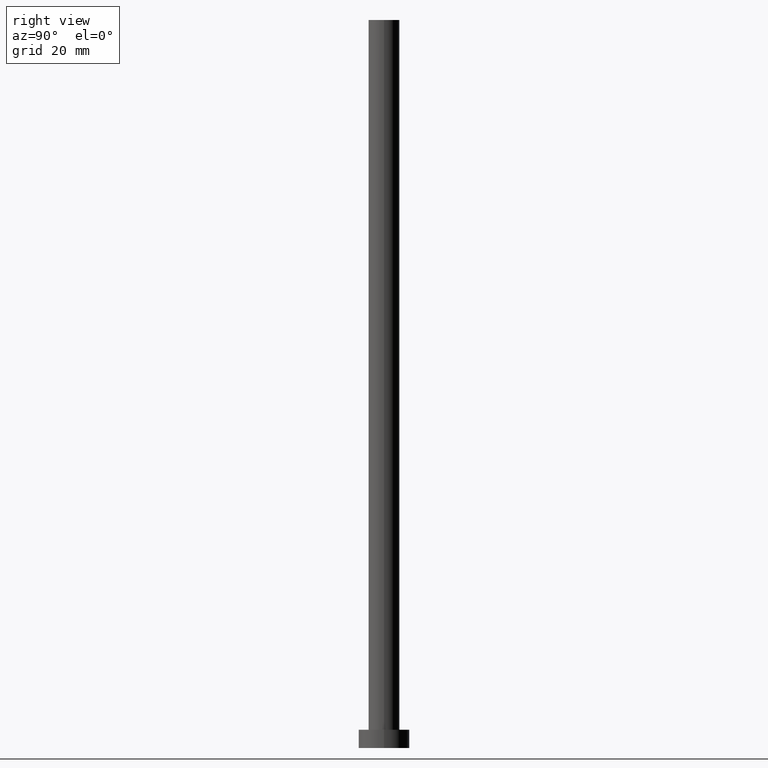
[diagram: clean part render]
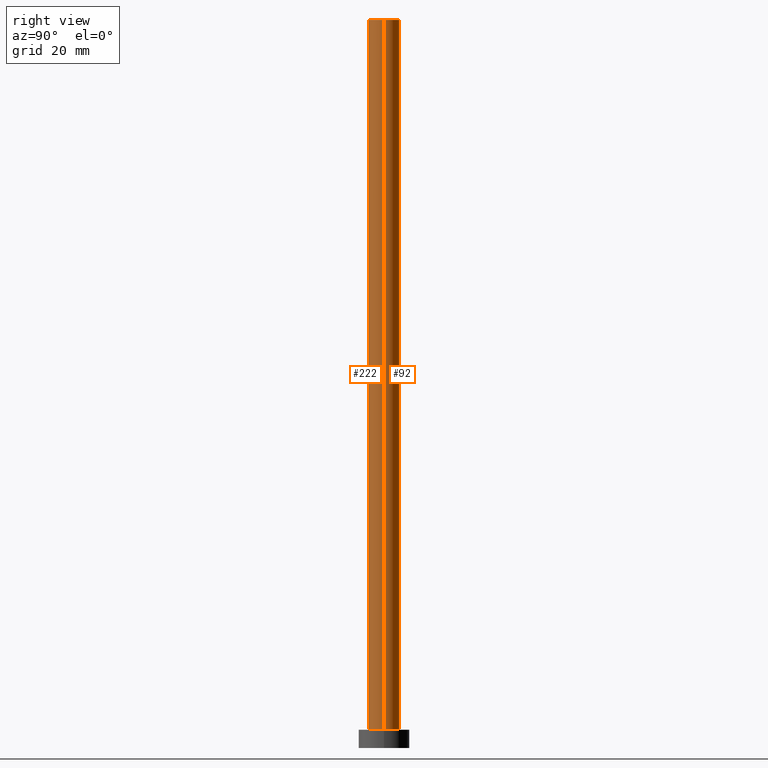
[diagram: same view with one multi-face feature highlighted, each face labeled with its STEP entity id]
A machine part, right view. The highlighted faces form ONE feature: a constant-radius fillet chain: 2 tangent blend faces with common blend radius 4.25 mm. The faces share edges in the B-rep.
Their STEP definitions:
[1] entity #92 (Cylinder):
#14 = VERTEX_POINT ( 'NONE', #24 ) ;
#18 = VERTEX_POINT ( 'NONE', #226 ) ;
#19 = AXIS2_PLACEMENT_3D ( 'NONE', #96, #175, #99 ) ;
#24 = CARTESIAN_POINT ( 'NONE',  ( 4.250000000000000000, 5.204748896376250699E-16, 200.0000000000000000 ) ) ;
#35 = VECTOR ( 'NONE', #143, 1000.000000000000000 ) ;
#44 = EDGE_CURVE ( 'NONE', #161, #57, #73, .T. ) ;
#46 = EDGE_CURVE ( 'NONE', #18, #57, #98, .T. ) ;
#57 = VERTEX_POINT ( 'NONE', #66 ) ;
#60 = ORIENTED_EDGE ( 'NONE', *, *, #46, .F. ) ;
#63 = CARTESIAN_POINT ( 'NONE',  ( 4.250000000000000000, 5.204748896376250699E-16, 200.0000000000000000 ) ) ;
#66 = CARTESIAN_POINT ( 'NONE',  ( -4.250000000000000000, 0.000000000000000000, 5.000000000000000000 ) ) ;
#68 = EDGE_LOOP ( 'NONE', ( #211, #146, #251, #60 ) ) ;
#73 = CIRCLE ( 'NONE', #193, 4.250000000000000000 ) ;
#81 = LINE ( 'NONE', #63, #134 ) ;
#92 = ADVANCED_FACE ( 'NONE', ( #184 ), #164, .T. ) ;
#94 = CARTESIAN_POINT ( 'NONE',  ( 0.000000000000000000, 0.000000000000000000, 5.000000000000000000 ) ) ;
#96 = CARTESIAN_POINT ( 'NONE',  ( 0.000000000000000000, 0.000000000000000000, 200.0000000000000000 ) ) ;
#98 = LINE ( 'NONE', #106, #35 ) ;
#99 = DIRECTION ( 'NONE',  ( 1.000000000000000000, 0.000000000000000000, 0.000000000000000000 ) ) ;
#106 = CARTESIAN_POINT ( 'NONE',  ( -4.250000000000000000, 0.000000000000000000, 200.0000000000000000 ) ) ;
#127 = DIRECTION ( 'NONE',  ( -1.000000000000000000, 0.000000000000000000, 0.000000000000000000 ) ) ;
#134 = VECTOR ( 'NONE', #246, 1000.000000000000000 ) ;
#137 = EDGE_CURVE ( 'NONE', #14, #161, #81, .T. ) ;
#143 = DIRECTION ( 'NONE',  ( -0.000000000000000000, -0.000000000000000000, -1.000000000000000000 ) ) ;
#146 = ORIENTED_EDGE ( 'NONE', *, *, #137, .T. ) ;
#156 = CARTESIAN_POINT ( 'NONE',  ( 4.250000000000000000, 5.204748896376250699E-16, 5.000000000000000000 ) ) ;
#161 = VERTEX_POINT ( 'NONE', #156 ) ;
#164 = CYLINDRICAL_SURFACE ( 'NONE', #196, 4.250000000000000000 ) ;
#174 = DIRECTION ( 'NONE',  ( 1.000000000000000000, 0.000000000000000000, 0.000000000000000000 ) ) ;
#175 = DIRECTION ( 'NONE',  ( 0.000000000000000000, 0.000000000000000000, 1.000000000000000000 ) ) ;
#184 = FACE_OUTER_BOUND ( 'NONE', #68, .T. ) ;
#187 = EDGE_CURVE ( 'NONE', #14, #18, #213, .T. ) ;
#193 = AXIS2_PLACEMENT_3D ( 'NONE', #94, #199, #174 ) ;
#196 = AXIS2_PLACEMENT_3D ( 'NONE', #201, #235, #127 ) ;
#199 = DIRECTION ( 'NONE',  ( 0.000000000000000000, 0.000000000000000000, 1.000000000000000000 ) ) ;
#201 = CARTESIAN_POINT ( 'NONE',  ( 0.000000000000000000, 0.000000000000000000, 200.0000000000000000 ) ) ;
#211 = ORIENTED_EDGE ( 'NONE', *, *, #187, .F. ) ;
#213 = CIRCLE ( 'NONE', #19, 4.250000000000000000 ) ;
#226 = CARTESIAN_POINT ( 'NONE',  ( -4.250000000000000000, 0.000000000000000000, 200.0000000000000000 ) ) ;
#235 = DIRECTION ( 'NONE',  ( -0.000000000000000000, -0.000000000000000000, -1.000000000000000000 ) ) ;
#246 = DIRECTION ( 'NONE',  ( -0.000000000000000000, -0.000000000000000000, -1.000000000000000000 ) ) ;
#251 = ORIENTED_EDGE ( 'NONE', *, *, #44, .T. ) ;
[2] entity #222 (Cylinder):
#1 = EDGE_CURVE ( 'NONE', #57, #161, #108, .T. ) ;
#2 = EDGE_LOOP ( 'NONE', ( #194, #192, #41, #183 ) ) ;
#3 = AXIS2_PLACEMENT_3D ( 'NONE', #180, #7, #12 ) ;
#4 = AXIS2_PLACEMENT_3D ( 'NONE', #171, #148, #242 ) ;
#7 = DIRECTION ( 'NONE',  ( 0.000000000000000000, 0.000000000000000000, 1.000000000000000000 ) ) ;
#12 = DIRECTION ( 'NONE',  ( 1.000000000000000000, 0.000000000000000000, 0.000000000000000000 ) ) ;
#14 = VERTEX_POINT ( 'NONE', #24 ) ;
#18 = VERTEX_POINT ( 'NONE', #226 ) ;
#24 = CARTESIAN_POINT ( 'NONE',  ( 4.250000000000000000, 5.204748896376250699E-16, 200.0000000000000000 ) ) ;
#28 = FACE_OUTER_BOUND ( 'NONE', #2, .T. ) ;
#35 = VECTOR ( 'NONE', #143, 1000.000000000000000 ) ;
#38 = AXIS2_PLACEMENT_3D ( 'NONE', #197, #78, #227 ) ;
#41 = ORIENTED_EDGE ( 'NONE', *, *, #46, .T. ) ;
#46 = EDGE_CURVE ( 'NONE', #18, #57, #98, .T. ) ;
#57 = VERTEX_POINT ( 'NONE', #66 ) ;
#63 = CARTESIAN_POINT ( 'NONE',  ( 4.250000000000000000, 5.204748896376250699E-16, 200.0000000000000000 ) ) ;
#66 = CARTESIAN_POINT ( 'NONE',  ( -4.250000000000000000, 0.000000000000000000, 5.000000000000000000 ) ) ;
#78 = DIRECTION ( 'NONE',  ( -0.000000000000000000, -0.000000000000000000, -1.000000000000000000 ) ) ;
#81 = LINE ( 'NONE', #63, #134 ) ;
#98 = LINE ( 'NONE', #106, #35 ) ;
#106 = CARTESIAN_POINT ( 'NONE',  ( -4.250000000000000000, 0.000000000000000000, 200.0000000000000000 ) ) ;
#108 = CIRCLE ( 'NONE', #4, 4.250000000000000000 ) ;
#134 = VECTOR ( 'NONE', #246, 1000.000000000000000 ) ;
#137 = EDGE_CURVE ( 'NONE', #14, #161, #81, .T. ) ;
#143 = DIRECTION ( 'NONE',  ( -0.000000000000000000, -0.000000000000000000, -1.000000000000000000 ) ) ;
#148 = DIRECTION ( 'NONE',  ( 0.000000000000000000, 0.000000000000000000, 1.000000000000000000 ) ) ;
#156 = CARTESIAN_POINT ( 'NONE',  ( 4.250000000000000000, 5.204748896376250699E-16, 5.000000000000000000 ) ) ;
#161 = VERTEX_POINT ( 'NONE', #156 ) ;
#171 = CARTESIAN_POINT ( 'NONE',  ( 0.000000000000000000, 0.000000000000000000, 5.000000000000000000 ) ) ;
#178 = CYLINDRICAL_SURFACE ( 'NONE', #38, 4.250000000000000000 ) ;
#180 = CARTESIAN_POINT ( 'NONE',  ( 0.000000000000000000, 0.000000000000000000, 200.0000000000000000 ) ) ;
#183 = ORIENTED_EDGE ( 'NONE', *, *, #1, .T. ) ;
#192 = ORIENTED_EDGE ( 'NONE', *, *, #241, .F. ) ;
#194 = ORIENTED_EDGE ( 'NONE', *, *, #137, .F. ) ;
#197 = CARTESIAN_POINT ( 'NONE',  ( 0.000000000000000000, 0.000000000000000000, 200.0000000000000000 ) ) ;
#222 = ADVANCED_FACE ( 'NONE', ( #28 ), #178, .T. ) ;
#226 = CARTESIAN_POINT ( 'NONE',  ( -4.250000000000000000, 0.000000000000000000, 200.0000000000000000 ) ) ;
#227 = DIRECTION ( 'NONE',  ( -1.000000000000000000, 0.000000000000000000, 0.000000000000000000 ) ) ;
#241 = EDGE_CURVE ( 'NONE', #18, #14, #247, .T. ) ;
#242 = DIRECTION ( 'NONE',  ( 1.000000000000000000, 0.000000000000000000, 0.000000000000000000 ) ) ;
#246 = DIRECTION ( 'NONE',  ( -0.000000000000000000, -0.000000000000000000, -1.000000000000000000 ) ) ;
#247 = CIRCLE ( 'NONE', #3, 4.250000000000000000 ) ;